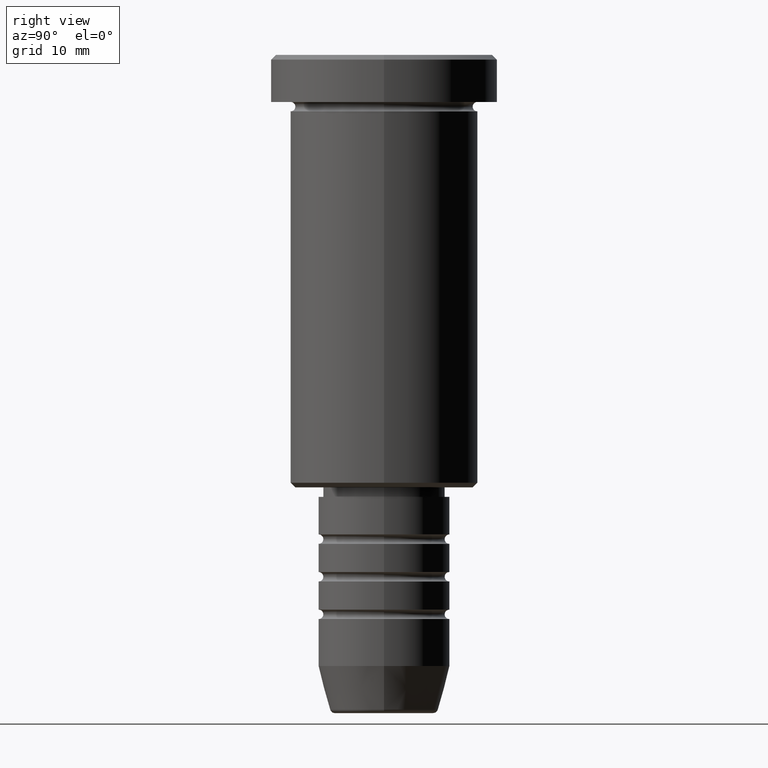
[diagram: clean part render]
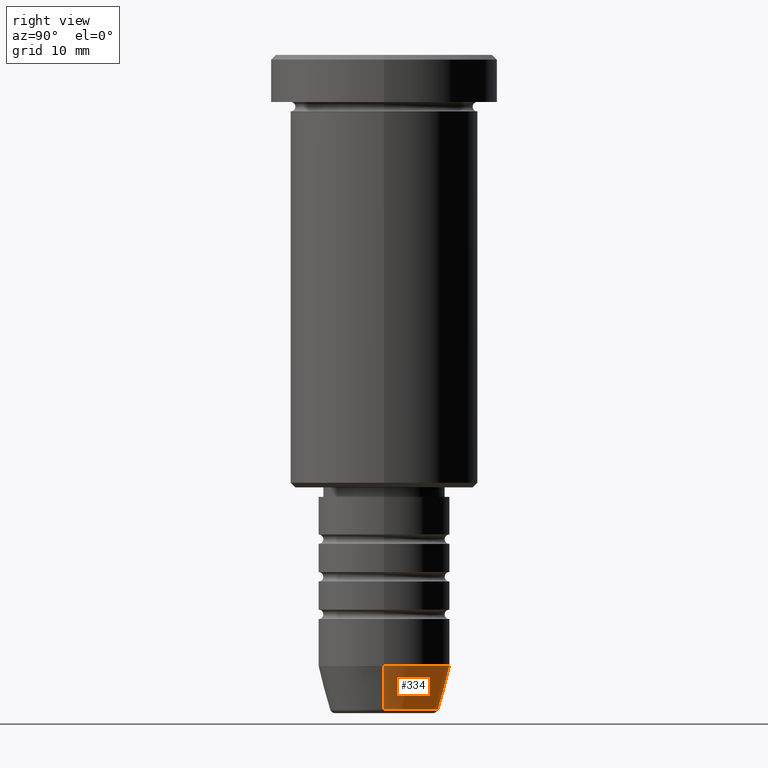
[diagram: same view with one face highlighted and labeled with its STEP entity id]
A machine part, right view. The second image highlights one B-rep face of the part: STEP entity #334.
In plain terms, the highlighted conical surface has half-angle 15 deg.
Its self-contained STEP definition (entity closure, byte-faithful):
#55 = DIRECTION ( 'NONE',  ( -0.000000000000000000, -0.000000000000000000, 1.000000000000000000 ) ) ;
#101 = DIRECTION ( 'NONE',  ( 1.000000000000000000, 0.000000000000000000, 0.000000000000000000 ) ) ;
#103 = ORIENTED_EDGE ( 'NONE', *, *, #737, .F. ) ;
#120 = VERTEX_POINT ( 'NONE', #234 ) ;
#156 = DIRECTION ( 'NONE',  ( 1.000000000000000000, 0.000000000000000000, 0.000000000000000000 ) ) ;
#172 = DIRECTION ( 'NONE',  ( 0.2588190451025213501, 0.000000000000000000, 0.9659258262890680902 ) ) ;
#175 = DIRECTION ( 'NONE',  ( 1.000000000000000000, 0.000000000000000000, 0.000000000000000000 ) ) ;
#177 = AXIS2_PLACEMENT_3D ( 'NONE', #521, #55, #156 ) ;
#184 = CARTESIAN_POINT ( 'NONE',  ( 5.759553456999433330, 0.000000000000000000, -69.62940952255127058 ) ) ;
#234 = CARTESIAN_POINT ( 'NONE',  ( 7.000000000000000888, 0.000000000000000000, -65.00000000000000000 ) ) ;
#239 = FACE_OUTER_BOUND ( 'NONE', #777, .T. ) ;
#307 = AXIS2_PLACEMENT_3D ( 'NONE', #1159, #986, #175 ) ;
#334 = ADVANCED_FACE ( 'NONE', ( #239 ), #790, .T. ) ;
#344 = CARTESIAN_POINT ( 'NONE',  ( -7.000000000000000888, 8.572527594031474176E-16, -65.00000000000000000 ) ) ;
#442 = CARTESIAN_POINT ( 'NONE',  ( -7.000000000000000888, 8.572527594031474176E-16, -65.00000000000000000 ) ) ;
#461 = CARTESIAN_POINT ( 'NONE',  ( 7.000000000000000888, 0.000000000000000000, -65.00000000000000000 ) ) ;
#479 = ORIENTED_EDGE ( 'NONE', *, *, #1041, .T. ) ;
#512 = VECTOR ( 'NONE', #172, 1000.000000000000000 ) ;
#521 = CARTESIAN_POINT ( 'NONE',  ( 0.000000000000000000, 0.000000000000000000, -65.00000000000000000 ) ) ;
#691 = CIRCLE ( 'NONE', #177, 7.000000000000000888 ) ;
#737 = EDGE_CURVE ( 'NONE', #120, #972, #691, .T. ) ;
#777 = EDGE_LOOP ( 'NONE', ( #479, #1046, #103, #1136 ) ) ;
#790 = CONICAL_SURFACE ( 'NONE', #307, 7.000000000000000888, 0.2617993877991500740 ) ;
#797 = DIRECTION ( 'NONE',  ( -0.2588190451025213501, 3.169619151431772337E-17, 0.9659258262890680902 ) ) ;
#823 = DIRECTION ( 'NONE',  ( -0.000000000000000000, -0.000000000000000000, 1.000000000000000000 ) ) ;
#917 = AXIS2_PLACEMENT_3D ( 'NONE', #919, #823, #101 ) ;
#919 = CARTESIAN_POINT ( 'NONE',  ( 0.000000000000000000, 0.000000000000000000, -69.62940952255127058 ) ) ;
#951 = EDGE_CURVE ( 'NONE', #1048, #972, #983, .T. ) ;
#962 = EDGE_CURVE ( 'NONE', #1174, #120, #1006, .T. ) ;
#972 = VERTEX_POINT ( 'NONE', #344 ) ;
#983 = LINE ( 'NONE', #442, #1036 ) ;
#986 = DIRECTION ( 'NONE',  ( -0.000000000000000000, -0.000000000000000000, 1.000000000000000000 ) ) ;
#1006 = LINE ( 'NONE', #461, #512 ) ;
#1036 = VECTOR ( 'NONE', #797, 1000.000000000000000 ) ;
#1041 = EDGE_CURVE ( 'NONE', #1174, #1048, #1139, .T. ) ;
#1046 = ORIENTED_EDGE ( 'NONE', *, *, #951, .T. ) ;
#1048 = VERTEX_POINT ( 'NONE', #1114 ) ;
#1114 = CARTESIAN_POINT ( 'NONE',  ( -5.759553456999433330, 7.812973149831950787E-16, -69.62940952255127058 ) ) ;
#1136 = ORIENTED_EDGE ( 'NONE', *, *, #962, .F. ) ;
#1139 = CIRCLE ( 'NONE', #917, 5.759553456999433330 ) ;
#1159 = CARTESIAN_POINT ( 'NONE',  ( 0.000000000000000000, 0.000000000000000000, -65.00000000000000000 ) ) ;
#1174 = VERTEX_POINT ( 'NONE', #184 ) ;